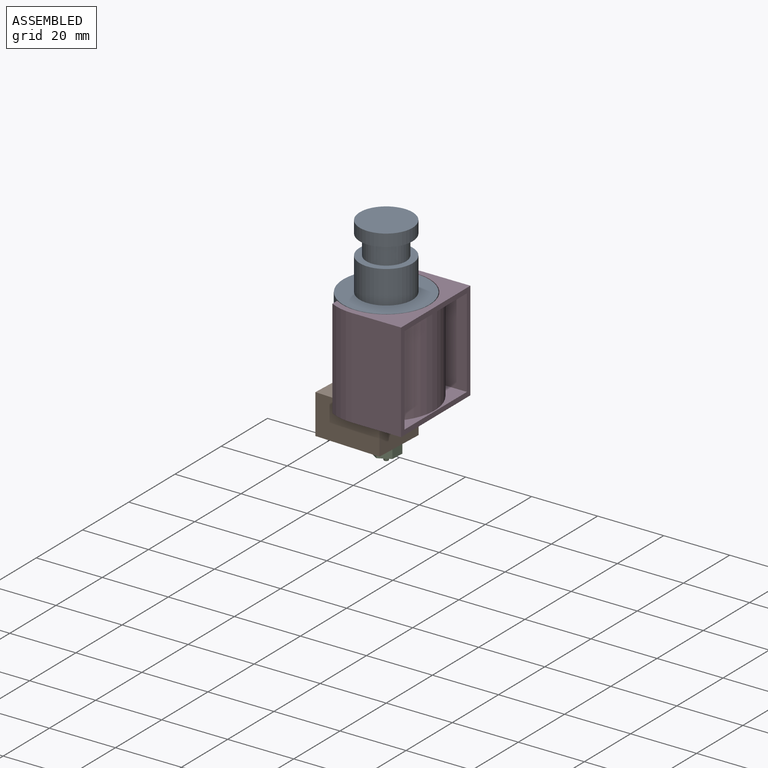
[diagram: assembled view]
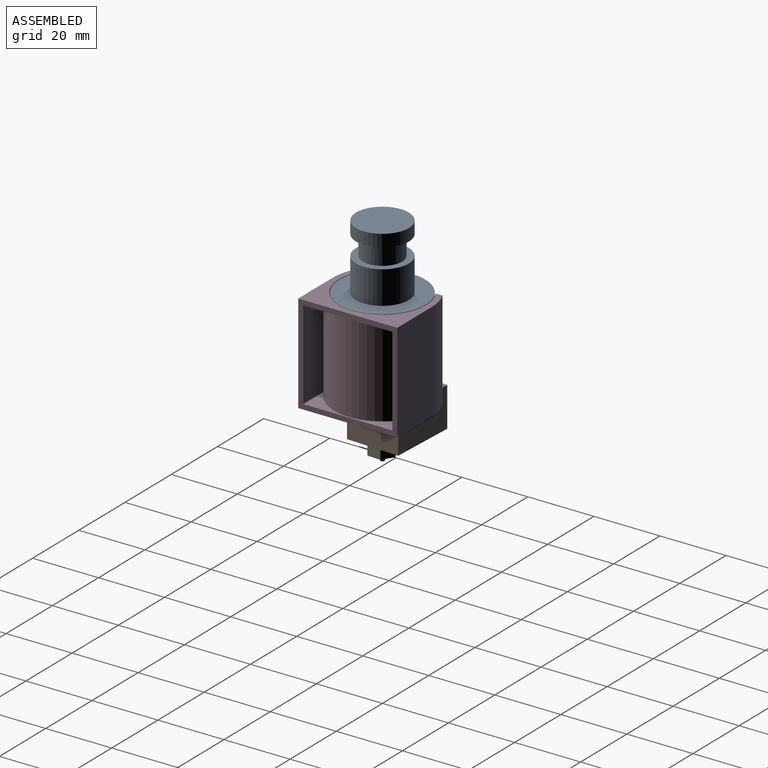
[diagram: assembled view, second angle]
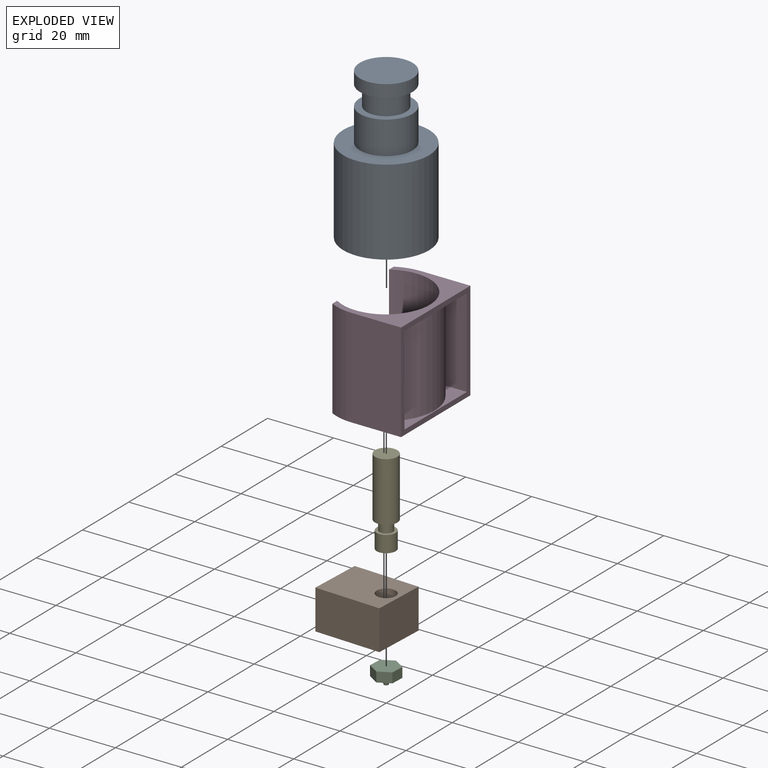
[diagram: exploded view]
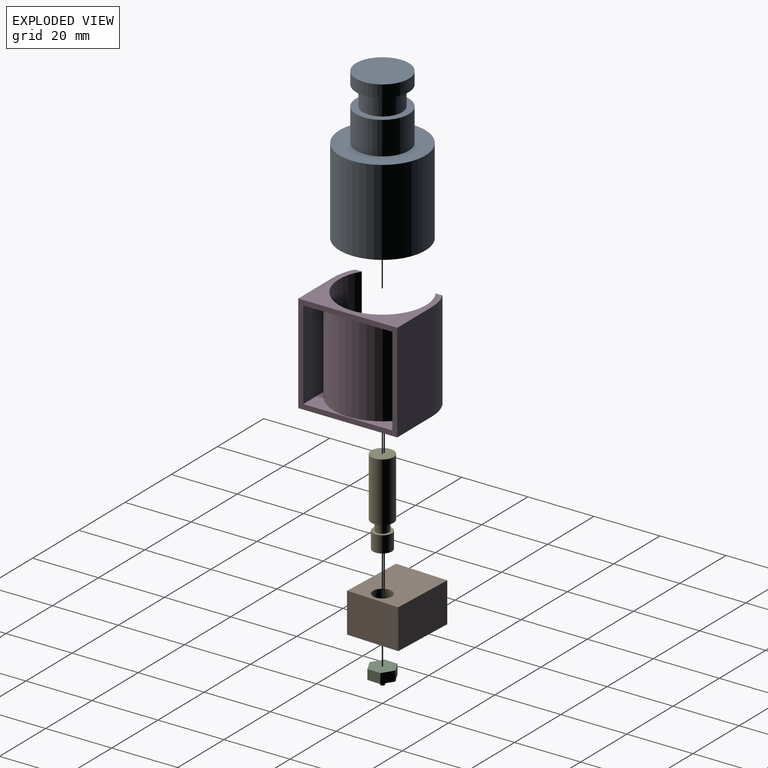
[diagram: exploded view, second angle]
ASSEMBLY  parts=5 mates=4
PART A: 11 faces, bbox 26x26x45.7 mm
  f0: cylinder r=8mm len=16mm, axis (0,0,-1), area 186mm2, adj f1,f2
  f1: plane 16x16mm, normal (0,0,1), area 201.1mm2, adj f0
  f2: plane 16x16mm, normal (0,0,-1), area 88mm2, adj f0,f3
  f3: cylinder r=6mm len=12mm, axis (0,0,1), area 226.2mm2, adj f2,f5
  f4: cylinder r=8mm len=16mm, axis (0,0,1), area 502.7mm2, adj f5,f8
  f5: plane 16x16mm, normal (0,0,1), area 88mm2, adj f3,f4
  f6: cylinder r=13mm len=26mm, axis (0,0,1), area 2123.7mm2, adj f7,f8
  f7: plane 26x26mm, normal (0,0,-1), area 494.6mm2, adj f6,f9
  f8: plane 26x26mm, normal (0,0,1), area 329.9mm2, adj f4,f6
  f9: cylinder r=3.4mm len=18mm, axis (0,0,-1), area 384.5mm2, adj f7,f10
  f10: plane 6.8x6.8mm, normal (0,0,-1), area 36.3mm2, adj f9
PART B: 7 faces, bbox 20x16x12 mm
  f0: plane 20x12mm, normal (0,1,0), area 240mm2, adj f1,f3,f4,f5
  f1: plane 16x12mm, normal (-1,0,0), area 192mm2, adj f0,f2,f4,f5
  f2: plane 20x12mm, normal (0,-1,0), area 240mm2, adj f1,f3,f4,f5
  f3: plane 16x12mm, normal (1,0,0), area 192mm2, adj f0,f2,f4,f5
  f4: plane 20x16mm, normal (0,0,-1), area 294mm2, adj f0,f1,f2,f3,f6
  f5: plane 20x16mm, normal (0,0,1), area 294mm2, adj f0,f1,f2,f3,f6
  f6: cylinder r=2.88mm len=12mm, axis (0,0,-1), area 216.8mm2, adj f4,f5
PART C: 10 faces, bbox 7x8.1x5 mm
  f0: plane 3.5x3mm, normal (-0.5,0.87,0), area 12.1mm2, adj f1,f5,f6,f7
  f1: plane 3.5x3mm, normal (0.5,0.87,0), area 12.1mm2, adj f0,f2,f6,f7
  f2: plane 4.04x3mm, normal (1,0,0), area 12.1mm2, adj f1,f3,f6,f7
  f3: plane 3.5x3mm, normal (0.5,-0.87,0), area 12.1mm2, adj f2,f4,f6,f7
  f4: plane 3.5x3mm, normal (-0.5,-0.87,0), area 12.1mm2, adj f3,f5,f6,f7
  f5: plane 4.04x3mm, normal (-1,0,0), area 12.1mm2, adj f0,f4,f6,f7
  f6: plane 8.08x7mm, normal (0,0,-1), area 38.3mm2, adj f0,f1,f2,f3,f4,f5,f9
  f7: plane 8.08x7mm, normal (0,0,1), area 42.4mm2, adj f0,f1,f2,f3,f4,f5
  f8: plane 1.3x1.3mm, normal (0,0,-1), area 1.3mm2, adj f9
  f9: cone r=1.9mm half-angle=14deg, axis (0,0,1), area 11.7mm2, adj f6,f8
PART D: 15 faces, bbox 22x30x30 mm
  f0: plane 30x30mm, normal (1,0,0), area 171mm2, adj f1,f7,f8,f9,f10,f12,f13,f14
  f1: plane 30x15mm, normal (0,1,0), area 450mm2, adj f0,f2,f8,f9
  f2: cylinder r=15mm len=30mm, axis (0,0,1), area 218.5mm2, adj f1,f3,f8,f9
  f3: plane 30x2.08mm, normal (-1,0,0), area 62.3mm2, adj f2,f4,f8,f9
  f4: cylinder r=13.2mm len=30mm, axis (0,0,1), area 1686.8mm2, adj f3,f5,f8,f9
  f5: plane 30x2.08mm, normal (-1,0,0), area 62.3mm2, adj f4,f6,f8,f9
  f6: cylinder r=15mm len=30mm, axis (0,0,1), area 218.5mm2, adj f5,f7,f8,f9
  f7: plane 30x15mm, normal (0,-1,0), area 450mm2, adj f0,f6,f8,f9
  f8: plane 30x22mm, normal (0,0,-1), area 202.7mm2, adj f0,f1,f2,f3,f4,f5,f6,f7
  f9: plane 30x22mm, normal (0,0,1), area 202.7mm2, adj f0,f1,f2,f3,f4,f5,f6,f7
  f10: plane 27x9.18mm, normal (0,-1,0), area 247.9mm2, adj f0,f11,f13,f14
  f11: cylinder r=14.7mm len=27mm, axis (0,0,1), area 923.9mm2, adj f10,f12,f13,f14
  f12: plane 27x9.18mm, normal (0,1,0), area 247.9mm2, adj f0,f11,f13,f14
  f13: plane 27x9.18mm, normal (0,0,1), area 75mm2, adj f0,f10,f11,f12
  f14: plane 27x9.18mm, normal (0,0,-1), area 75mm2, adj f0,f10,f11,f12
PART E: 7 faces, bbox 6.8x6.8x26 mm
  f0: cylinder r=3.4mm len=18mm, axis (0,0,-1), area 384.5mm2, adj f1,f2
  f1: plane 6.8x6.8mm, normal (0,0,1), area 36.3mm2, adj f0
  f2: plane 6.8x6.8mm, normal (0,0,-1), area 23.8mm2, adj f0,f3
  f3: cylinder r=2mm len=4mm, axis (0,0,1), area 37.7mm2, adj f2,f6
  f4: cylinder r=2.88mm len=5.75mm, axis (0,0,1), area 90.3mm2, adj f5,f6
  f5: plane 5.75x5.75mm, normal (0,0,-1), area 26mm2, adj f4
  f6: plane 5.75x5.75mm, normal (0,0,1), area 13.4mm2, adj f3,f4
PLACE A at identity fixed
PLACE B rot(axis=(0,0,-1),2.5deg) t=(0,0,0)mm
PLACE C rot(axis=(0,0,-1),2.5deg) t=(0,0,0)mm
PLACE D at identity
PLACE E at identity
MATE fastened A.f0 <-> E.f0  axis (0,0,-1) through (0,0,-42)mm
MATE revolute A.f0 <-> D.f2  axis (0,0,1) through (0,0,-16)mm
MATE revolute E.f0 <-> B.f6  axis (0,0,1) through (0,0,-45)mm
MATE fastened C.f9 <-> B.f6  axis (0,0,1) through (0,0,-57)mm
